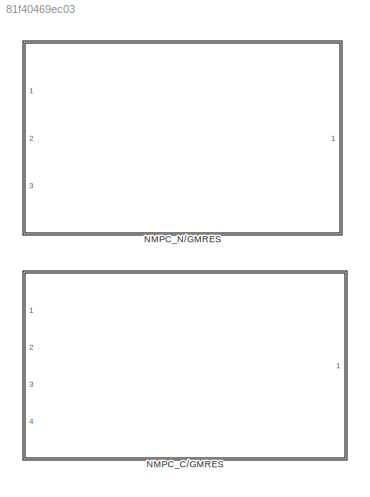
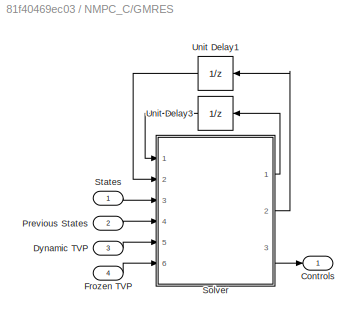
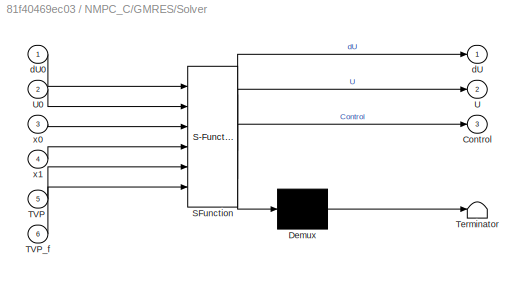
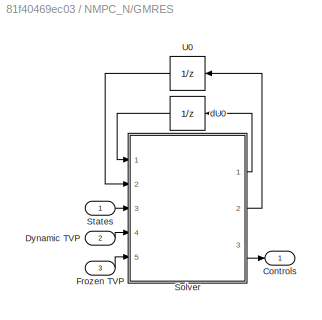
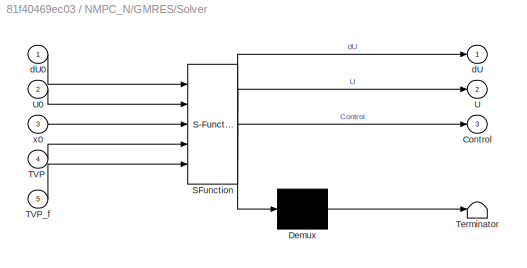
MODEL slx_81f40469ec03
KIND model
CONFIG AbsTol = auto
CONFIG FixedStep = auto
CONFIG MaxStep = auto
CONFIG MinStep = auto
CONFIG RelTol = 1e-3
CONFIG SampleTimeConstraint = Unconstrained
CONFIG Solver = VariableStepAuto
CONFIG SolverMode = Auto
CONFIG SolverName = VariableStepAuto
CONFIG StartTime = 0.0
CONFIG StopTime = 10.0
BLOCK [SubSystem] NMPC_C//GMRES
  Permissions = ReadOnly
  Ports = [4, 1]
  RequestExecContextInheritance = off
  ShowPortLabels = FromPortBlockName
  Variant = off
BLOCK [Outport] NMPC_C//GMRES/Controls
  IconDisplay = Port number
BLOCK [Inport] NMPC_C//GMRES/Dynamic TVP
  IconDisplay = Port number
  Port = 3
BLOCK [Inport] NMPC_C//GMRES/Frozen TVP
  IconDisplay = Port number
  Port = 4
BLOCK [Inport] NMPC_C//GMRES/Previous States
  IconDisplay = Port number
  Port = 2
BLOCK [SubSystem] NMPC_C//GMRES/Solver
  ErrorFcn = Stateflow.Translate.translate
  PermitHierarchicalResolution = ExplicitOnly
  Ports = [6, 3]
  RequestExecContextInheritance = off
  SFBlockType = MATLAB Function
  ShowPortLabels = none
  TreatAsAtomicUnit = on
  Variant = off
BLOCK [Demux] NMPC_C//GMRES/Solver/ Demux 
  Outputs = 1
  Ports = [1, 1]
BLOCK [S-Function] NMPC_C//GMRES/Solver/ SFunction 
  EnableBusSupport = on
  FunctionName = sf_sfun
  PortCounts = [6 4]
  Ports = [6, 4]
  SFunctionDeploymentMode = off
  Tag = Stateflow S-Function NMPCLib 1
BLOCK [Terminator] NMPC_C//GMRES/Solver/ Terminator 
BLOCK [Outport] NMPC_C//GMRES/Solver/Control
  IconDisplay = Port number
  Port = 3
BLOCK [Inport] NMPC_C//GMRES/Solver/TVP
  IconDisplay = Port number
  Port = 5
BLOCK [Inport] NMPC_C//GMRES/Solver/TVP_f
  IconDisplay = Port number
  Port = 6
BLOCK [Outport] NMPC_C//GMRES/Solver/U
  IconDisplay = Port number
  Port = 2
BLOCK [Inport] NMPC_C//GMRES/Solver/U0
  IconDisplay = Port number
  Port = 2
BLOCK [Outport] NMPC_C//GMRES/Solver/dU
  IconDisplay = Port number
BLOCK [Inport] NMPC_C//GMRES/Solver/dU0
  IconDisplay = Port number
BLOCK [Inport] NMPC_C//GMRES/Solver/x0
  IconDisplay = Port number
  Port = 3
BLOCK [Inport] NMPC_C//GMRES/Solver/x1
  IconDisplay = Port number
  Port = 4
BLOCK [Inport] NMPC_C//GMRES/States
  IconDisplay = Port number
BLOCK [UnitDelay] NMPC_C//GMRES/Unit Delay1
  InitialCondition = U0
  InputProcessing = Elements as channels (sample based)
  SampleTime = -1
BLOCK [UnitDelay] NMPC_C//GMRES/Unit Delay3
  InitialCondition = dU0
  InputProcessing = Elements as channels (sample based)
  SampleTime = -1
BLOCK [SubSystem] NMPC_N//GMRES
  Permissions = ReadOnly
  Ports = [3, 1]
  RequestExecContextInheritance = off
  ShowPortLabels = FromPortBlockName
  Variant = off
BLOCK [Outport] NMPC_N//GMRES/Controls
  IconDisplay = Port number
BLOCK [Inport] NMPC_N//GMRES/Dynamic TVP
  IconDisplay = Port number
  Port = 2
BLOCK [Inport] NMPC_N//GMRES/Frozen TVP
  IconDisplay = Port number
  Port = 3
BLOCK [SubSystem] NMPC_N//GMRES/Solver
  ErrorFcn = Stateflow.Translate.translate
  PermitHierarchicalResolution = ExplicitOnly
  Ports = [5, 3]
  RequestExecContextInheritance = off
  SFBlockType = MATLAB Function
  ShowPortLabels = none
  TreatAsAtomicUnit = on
  Variant = off
BLOCK [Demux] NMPC_N//GMRES/Solver/ Demux 
  Outputs = 1
  Ports = [1, 1]
BLOCK [S-Function] NMPC_N//GMRES/Solver/ SFunction 
  EnableBusSupport = on
  FunctionName = sf_sfun
  PortCounts = [5 4]
  Ports = [5, 4]
  SFunctionDeploymentMode = off
  Tag = Stateflow S-Function NMPCLib 5
BLOCK [Terminator] NMPC_N//GMRES/Solver/ Terminator 
BLOCK [Outport] NMPC_N//GMRES/Solver/Control
  IconDisplay = Port number
  Port = 3
BLOCK [Inport] NMPC_N//GMRES/Solver/TVP
  IconDisplay = Port number
  Port = 4
BLOCK [Inport] NMPC_N//GMRES/Solver/TVP_f
  IconDisplay = Port number
  Port = 5
BLOCK [Outport] NMPC_N//GMRES/Solver/U
  IconDisplay = Port number
  Port = 2
BLOCK [Inport] NMPC_N//GMRES/Solver/U0
  IconDisplay = Port number
  Port = 2
BLOCK [Outport] NMPC_N//GMRES/Solver/dU
  IconDisplay = Port number
BLOCK [Inport] NMPC_N//GMRES/Solver/dU0
  IconDisplay = Port number
BLOCK [Inport] NMPC_N//GMRES/Solver/x0
  IconDisplay = Port number
  Port = 3
BLOCK [Inport] NMPC_N//GMRES/States
  IconDisplay = Port number
BLOCK [UnitDelay] NMPC_N//GMRES/U0
  InitialCondition = U0
  InputProcessing = Elements as channels (sample based)
  SampleTime = -1
BLOCK [UnitDelay] NMPC_N//GMRES/dU0
  InitialCondition = dU0
  InputProcessing = Elements as channels (sample based)
  SampleTime = -1
LINE NMPC_C//GMRES/Dynamic TVP:1 -> NMPC_C//GMRES/Solver:5
LINE NMPC_C//GMRES/Frozen TVP:1 -> NMPC_C//GMRES/Solver:6
LINE NMPC_C//GMRES/Previous States:1 -> NMPC_C//GMRES/Solver:4
LINE NMPC_C//GMRES/Solver:1 -> NMPC_C//GMRES/Unit Delay3:1
LINE NMPC_C//GMRES/Solver:2 -> NMPC_C//GMRES/Unit Delay1:1
LINE NMPC_C//GMRES/Solver:3 -> NMPC_C//GMRES/Controls:1
LINE NMPC_C//GMRES/States:1 -> NMPC_C//GMRES/Solver:3
LINE NMPC_C//GMRES/Unit Delay1:1 -> NMPC_C//GMRES/Solver:2
LINE NMPC_C//GMRES/Unit Delay3:1 -> NMPC_C//GMRES/Solver:1
LINE NMPC_N//GMRES/Dynamic TVP:1 -> NMPC_N//GMRES/Solver:4
LINE NMPC_N//GMRES/Frozen TVP:1 -> NMPC_N//GMRES/Solver:5
LINE NMPC_N//GMRES/Solver:1 -> NMPC_N//GMRES/dU0:1
LINE NMPC_N//GMRES/Solver:2 -> NMPC_N//GMRES/U0:1
LINE NMPC_N//GMRES/Solver:3 -> NMPC_N//GMRES/Controls:1
LINE NMPC_N//GMRES/States:1 -> NMPC_N//GMRES/Solver:3
LINE NMPC_N//GMRES/U0:1 -> NMPC_N//GMRES/Solver:2
LINE NMPC_N//GMRES/dU0:1 -> NMPC_N//GMRES/Solver:1
CHART NMPC_C//GMRES/Solver states=1 transitions=1
  STATE_LABEL 'eML_blk_kernel()'
  STATE_LABEL 'SCRIPT:\n%% Continuation/GMRES  Continuation/GMRES Continuation/GMRES\nfunction [dU,U,Control] = NMPCBlock(dU0,U0,x0,x1,TVP,TVP_f)\n[dU,U,Control] = NMPC(dU0,U0,x0,x1,TVP,TVP_f);\n\n'
CHART NMPC_N//GMRES/Solver states=1 transitions=1
  STATE_LABEL 'eML_blk_kernel()'
  STATE_LABEL 'SCRIPT:\n%% NGMRES  NGMRES NGMRES\nfunction [dU,U,Control] = NMPCBlock(dU0,U0,x0,TVP,TVP_f)\n[dU,U,Control]=NMPC(dU0,U0,x0,TVP,TVP_f);\n\n'
